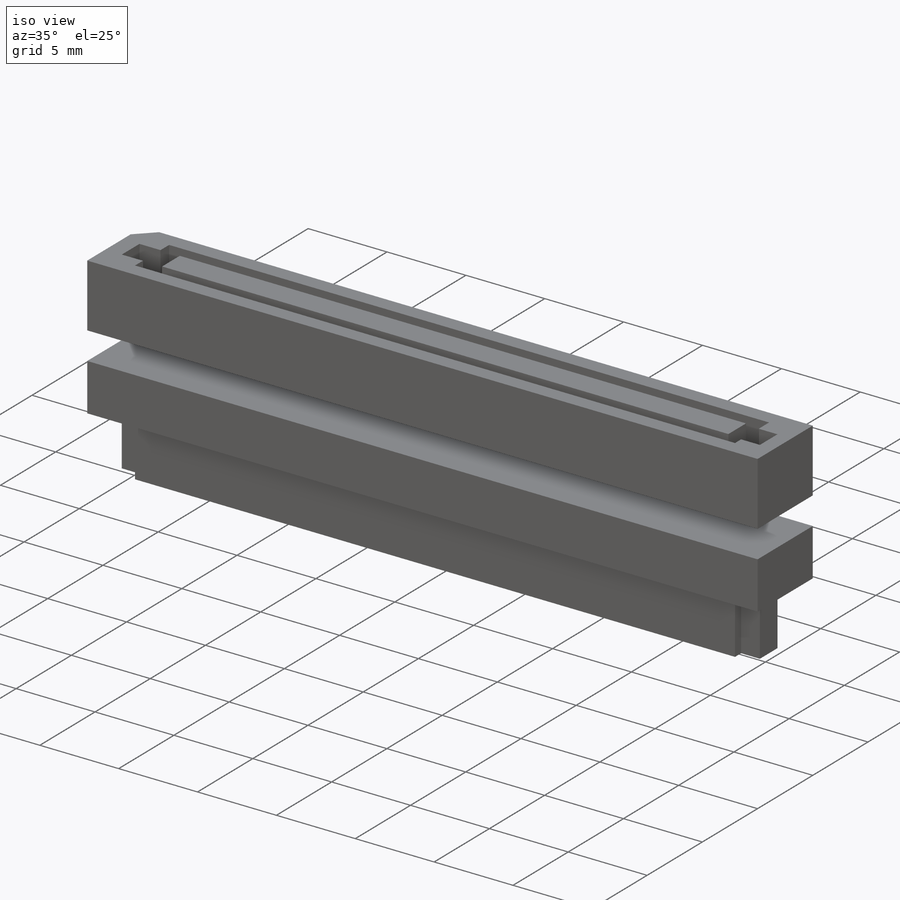
[diagram: iso view]
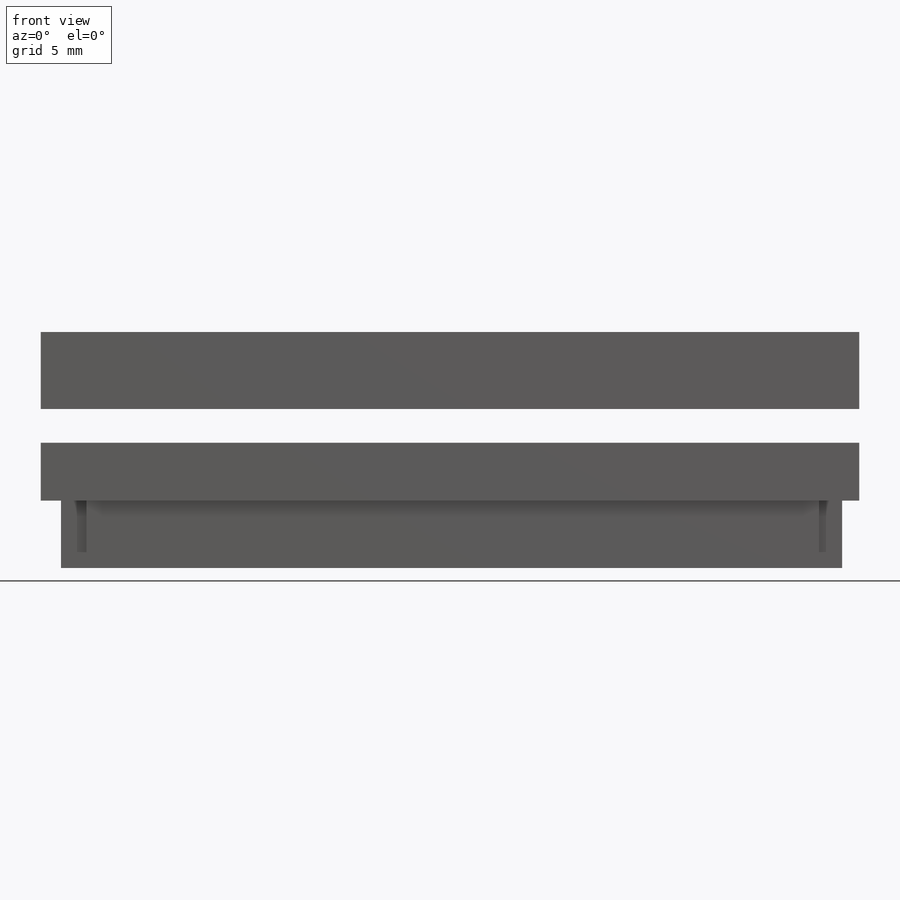
[diagram: front view]
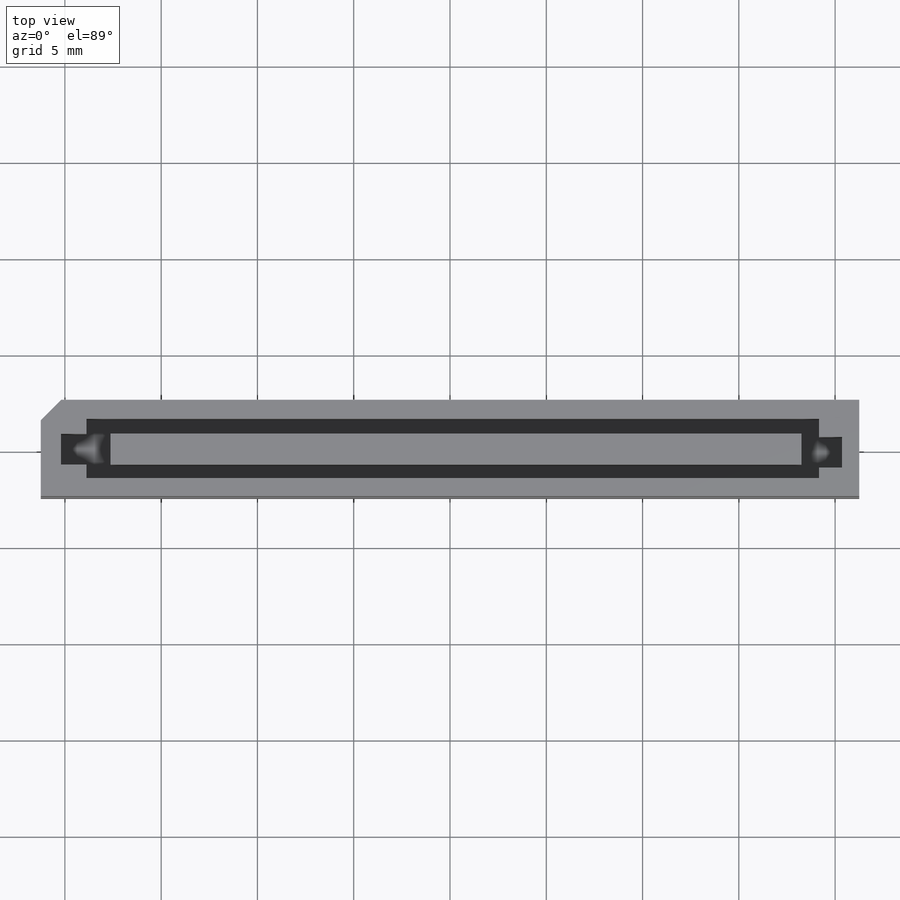
[diagram: top view]
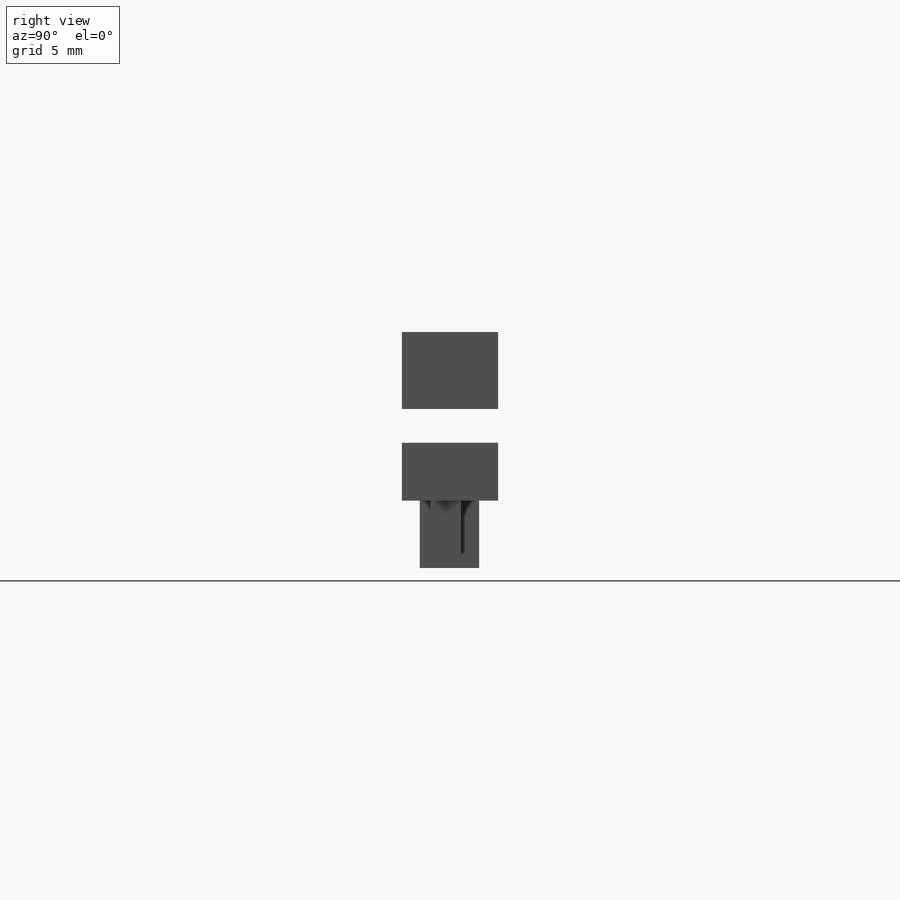
[diagram: right view]
SOLIDWORKS PART (.sldprt)
format: sldprt  version: not decoded by parser v0  size: 284,160 bytes
history: native  units: mm
features: sketch x4, extrude x3, plane x2, material x1, cut_extrude x1 (+14 scaffold rows collapsed; 2 parser-record rows omitted)
feature tree (27):
  scaffold x14  (default folders/planes/origin — collapsed)
  material  "Material <not specified>"
  plane  "Plane1"  Offset=1.7526mm
  plane  "center-of-slot"
  parser-record x2  (decoder bookkeeping rows leaked as tree rows — omitted from the tree; the rows remain in map.json)
  sketch  "Sketch1"  dims[c1.D1=1.061mm c1.D2=45.0deg c1.D3=1.061mm c1.D4=45.0deg c1.D5=1.061mm c1.D6=45.0deg c1.D7=1.061mm c1.D8=45.0deg c2.D1=1.06mm]
  extrude  "SV"  Depth=4mm
  sketch  "Sketch3"
  cut_extrude  "Cut-Extrude1"  Depth=3.5mm
  sketch  "Sketch6"  dims[c1.D1=1.5mm c2.D1=45.0deg c3.D1=1.5mm c4.D1=45.0deg c5.D1=1.5mm c6.D1=45.0deg c7.D1=1.5mm c8.D1=45.0deg c9.D1=1.061mm c9.D2=45.0deg c10.D1=1.061mm c10.D2=45.0deg c10.D3=1.061mm c10.D4=45.0deg c11.D1=~1.499066mm]
  extrude  "SV2(a)"  Depth=3mm
  sketch  "Sketch7"
  extrude  "SV2(b)"  Depth=3.5mm
decode coverage: 6 of 8 modeling features carry decoded parameters
note: ~ marks probable driven/reference dimensions
note: suppression state not decoded; provenance and decode notes live in map.json
